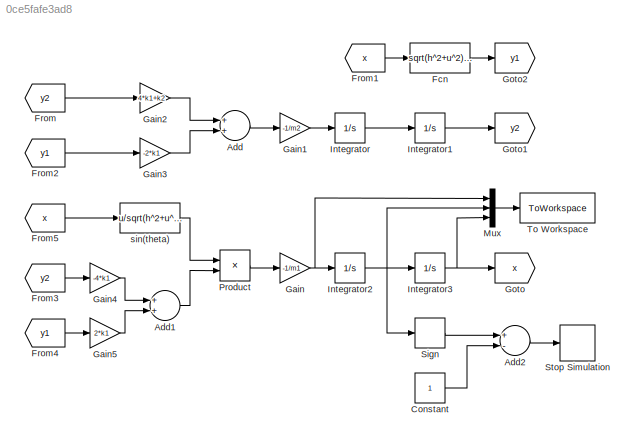
MODEL slx_0ce5fafe3ad8
KIND model
BLOCK [Sum] Add
  InputSameDT = off
  OutDataTypeStr = Inherit: Inherit via internal rule
  Ports = [2, 1]
  SaturateOnIntegerOverflow = off
BLOCK [Sum] Add1
  InputSameDT = off
  OutDataTypeStr = Inherit: Inherit via internal rule
  Ports = [2, 1]
  SaturateOnIntegerOverflow = off
BLOCK [Sum] Add2
  InputSameDT = off
  Inputs = +-
  OutDataTypeStr = Inherit: Inherit via internal rule
  Ports = [2, 1]
  SaturateOnIntegerOverflow = off
BLOCK [Constant] Constant
BLOCK [Fcn] Fcn
  Expr = sqrt(h^2+u^2)-h
BLOCK [From] From
  GotoTag = y2
BLOCK [From] From1
  GotoTag = x
BLOCK [From] From2
  GotoTag = y1
BLOCK [From] From3
  GotoTag = y2
BLOCK [From] From4
  GotoTag = y1
BLOCK [From] From5
  GotoTag = x
BLOCK [Gain] Gain
  Gain = -1/m1
  OutDataTypeStr = Inherit: Inherit via internal rule
  ParamDataTypeStr = Inherit: Inherit via internal rule
  SaturateOnIntegerOverflow = off
BLOCK [Gain] Gain1
  Gain = -1/m2
  OutDataTypeStr = Inherit: Inherit via internal rule
  ParamDataTypeStr = Inherit: Inherit via internal rule
  SaturateOnIntegerOverflow = off
BLOCK [Gain] Gain2
  Gain = 4*k1+k2
  OutDataTypeStr = Inherit: Inherit via internal rule
  ParamDataTypeStr = Inherit: Inherit via internal rule
  SaturateOnIntegerOverflow = off
BLOCK [Gain] Gain3
  Gain = -2*k1
  OutDataTypeStr = Inherit: Inherit via internal rule
  ParamDataTypeStr = Inherit: Inherit via internal rule
  SaturateOnIntegerOverflow = off
BLOCK [Gain] Gain4
  Gain = -4*k1
  OutDataTypeStr = Inherit: Inherit via internal rule
  ParamDataTypeStr = Inherit: Inherit via internal rule
  SaturateOnIntegerOverflow = off
BLOCK [Gain] Gain5
  Gain = 2*k1
  OutDataTypeStr = Inherit: Inherit via internal rule
  ParamDataTypeStr = Inherit: Inherit via internal rule
  SaturateOnIntegerOverflow = off
BLOCK [Goto] Goto
  GotoTag = x
BLOCK [Goto] Goto1
  GotoTag = y2
BLOCK [Goto] Goto2
  GotoTag = y1
BLOCK [Integrator] Integrator
  Ports = [1, 1]
BLOCK [Integrator] Integrator1
  Ports = [1, 1]
BLOCK [Integrator] Integrator2
  InitialCondition = v0
  Ports = [1, 1]
BLOCK [Integrator] Integrator3
  Ports = [1, 1]
BLOCK [Mux] Mux
  DisplayOption = bar
  Inputs = 3
  Ports = [3, 1]
BLOCK [Product] Product
  InputSameDT = off
  OutDataTypeStr = Inherit: Inherit via internal rule
  Ports = [2, 1]
  SaturateOnIntegerOverflow = off
BLOCK [Signum] Sign
BLOCK [Stop] Stop Simulation
BLOCK [ToWorkspace] To Workspace
  MaxDataPoints = inf
  Ports = [1]
  SampleTime = -1
  VariableName = wpr_hamsam
BLOCK [Fcn] sin(theta)
  Expr = u/sqrt(h^2+u^2)
LINE Add1:1 -> Product:2
LINE Add2:1 -> Stop Simulation:1
LINE Add:1 -> Gain1:1
LINE Constant:1 -> Add2:2
LINE Fcn:1 -> Goto2:1
LINE From1:1 -> Fcn:1
LINE From2:1 -> Gain3:1
LINE From3:1 -> Gain4:1
LINE From4:1 -> Gain5:1
LINE From5:1 -> sin(theta):1
LINE From:1 -> Gain2:1
LINE Gain1:1 -> Integrator:1
LINE Gain2:1 -> Add:1
LINE Gain3:1 -> Add:2
LINE Gain4:1 -> Add1:1
LINE Gain5:1 -> Add1:2
NET Gain:1 -> Integrator2:1, Mux:1
LINE Integrator1:1 -> Goto1:1
NET Integrator2:1 -> Integrator3:1, Mux:2, Sign:1
NET Integrator3:1 -> Goto:1, Mux:3
LINE Integrator:1 -> Integrator1:1
LINE Mux:1 -> To Workspace:1
LINE Product:1 -> Gain:1
LINE Sign:1 -> Add2:1
LINE sin(theta):1 -> Product:1
note: NET lines group one-source signal fan-out (src -> all destinations, sorted); 1:1 wires keep LINE
